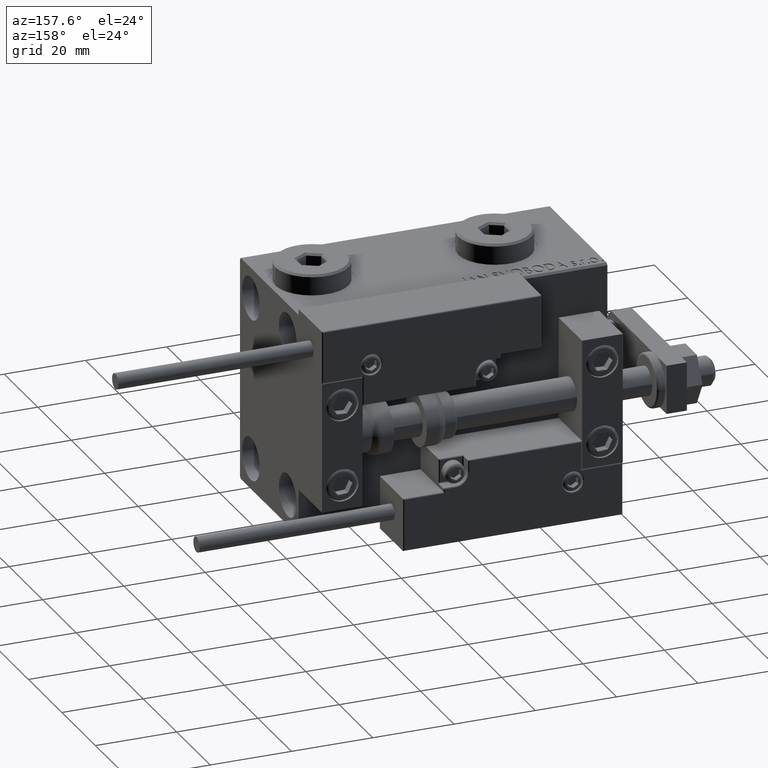
[diagram: clean part render]
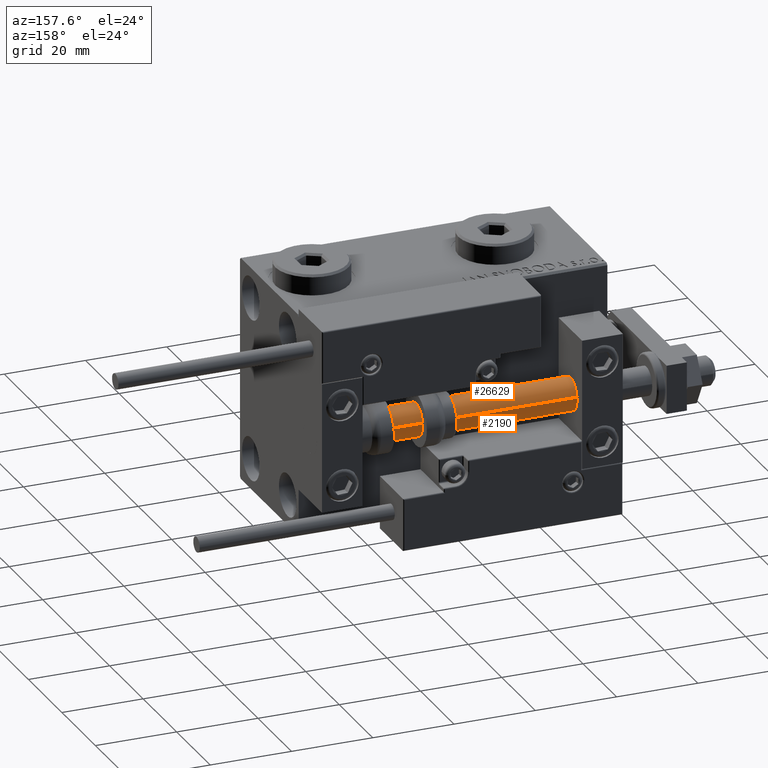
[diagram: same view with one multi-face feature highlighted, each face labeled with its STEP entity id]
A machine part, auxiliary view. The highlighted faces form ONE feature: a constant-radius fillet chain: 2 tangent blend faces with common blend radius 4 mm. The faces share edges in the B-rep.
Their STEP definitions:
[1] entity #26629 (Cylinder):
#31 = EDGE_CURVE ( 'NONE', #38899, #5874, #28288, .T. ) ;
#52 = AXIS2_PLACEMENT_3D ( 'NONE', #51109, #11991, #12262 ) ;
#252 = CARTESIAN_POINT ( 'NONE',  ( 4.000000000000000000, 4.898587196589412829E-16, 2.000000000000029310 ) ) ;
#1293 = LINE ( 'NONE', #13831, #13973 ) ;
#1883 = EDGE_CURVE ( 'NONE', #30315, #32132, #43352, .T. ) ;
#3469 = CARTESIAN_POINT ( 'NONE',  ( -4.000000000000000000, 0.000000000000000000, 76.00000000000000000 ) ) ;
#5874 = VERTEX_POINT ( 'NONE', #3469 ) ;
#5947 = CARTESIAN_POINT ( 'NONE',  ( 0.000000000000000000, 0.000000000000000000, 76.00000000000000000 ) ) ;
#7217 = CARTESIAN_POINT ( 'NONE',  ( -4.000000000000000000, 0.000000000000000000, 2.000000000000029310 ) ) ;
#7664 = LINE ( 'NONE', #44410, #25577 ) ;
#9223 = AXIS2_PLACEMENT_3D ( 'NONE', #5947, #26312, #41924 ) ;
#9635 = DIRECTION ( 'NONE',  ( -0.000000000000000000, -0.000000000000000000, -1.000000000000000000 ) ) ;
#11991 = DIRECTION ( 'NONE',  ( -0.000000000000000000, -0.000000000000000000, 1.000000000000000000 ) ) ;
#12262 = DIRECTION ( 'NONE',  ( 1.000000000000000000, 0.000000000000000000, 0.000000000000000000 ) ) ;
#13831 = CARTESIAN_POINT ( 'NONE',  ( -4.000000000000000000, 0.000000000000000000, 76.00000000000000000 ) ) ;
#13973 = VECTOR ( 'NONE', #9635, 1000.000000000000000 ) ;
#15253 = ORIENTED_EDGE ( 'NONE', *, *, #50145, .F. ) ;
#16639 = AXIS2_PLACEMENT_3D ( 'NONE', #21928, #17760, #29224 ) ;
#17760 = DIRECTION ( 'NONE',  ( 0.000000000000000000, 0.000000000000000000, 1.000000000000000000 ) ) ;
#19450 = EDGE_CURVE ( 'NONE', #38899, #30315, #7664, .T. ) ;
#21928 = CARTESIAN_POINT ( 'NONE',  ( 0.000000000000000000, 0.000000000000000000, 76.00000000000000000 ) ) ;
#25577 = VECTOR ( 'NONE', #47809, 1000.000000000000000 ) ;
#26050 = FACE_OUTER_BOUND ( 'NONE', #44891, .T. ) ;
#26312 = DIRECTION ( 'NONE',  ( -0.000000000000000000, -0.000000000000000000, -1.000000000000000000 ) ) ;
#26629 = ADVANCED_FACE ( 'NONE', ( #26050 ), #42703, .T. ) ;
#28288 = CIRCLE ( 'NONE', #16639, 4.000000000000000000 ) ;
#29224 = DIRECTION ( 'NONE',  ( 1.000000000000000000, 0.000000000000000000, 0.000000000000000000 ) ) ;
#29752 = ORIENTED_EDGE ( 'NONE', *, *, #19450, .T. ) ;
#30315 = VERTEX_POINT ( 'NONE', #252 ) ;
#32132 = VERTEX_POINT ( 'NONE', #7217 ) ;
#35311 = ORIENTED_EDGE ( 'NONE', *, *, #31, .F. ) ;
#38899 = VERTEX_POINT ( 'NONE', #51360 ) ;
#41924 = DIRECTION ( 'NONE',  ( -1.000000000000000000, 0.000000000000000000, 0.000000000000000000 ) ) ;
#42234 = ORIENTED_EDGE ( 'NONE', *, *, #1883, .T. ) ;
#42703 = CYLINDRICAL_SURFACE ( 'NONE', #9223, 4.000000000000000000 ) ;
#43352 = CIRCLE ( 'NONE', #52, 4.000000000000000000 ) ;
#44410 = CARTESIAN_POINT ( 'NONE',  ( 4.000000000000000000, 4.898587196589412829E-16, 76.00000000000000000 ) ) ;
#44891 = EDGE_LOOP ( 'NONE', ( #35311, #29752, #42234, #15253 ) ) ;
#47809 = DIRECTION ( 'NONE',  ( -0.000000000000000000, -0.000000000000000000, -1.000000000000000000 ) ) ;
#50145 = EDGE_CURVE ( 'NONE', #5874, #32132, #1293, .T. ) ;
#51109 = CARTESIAN_POINT ( 'NONE',  ( 0.000000000000000000, 0.000000000000000000, 2.000000000000029310 ) ) ;
#51360 = CARTESIAN_POINT ( 'NONE',  ( 4.000000000000000000, 4.898587196589412829E-16, 76.00000000000000000 ) ) ;
[2] entity #2190 (Cylinder):
#252 = CARTESIAN_POINT ( 'NONE',  ( 4.000000000000000000, 4.898587196589412829E-16, 2.000000000000029310 ) ) ;
#354 = EDGE_CURVE ( 'NONE', #32132, #30315, #49131, .T. ) ;
#1293 = LINE ( 'NONE', #13831, #13973 ) ;
#2190 = ADVANCED_FACE ( 'NONE', ( #7498 ), #19783, .T. ) ;
#2553 = AXIS2_PLACEMENT_3D ( 'NONE', #23428, #3583, #19520 ) ;
#3469 = CARTESIAN_POINT ( 'NONE',  ( -4.000000000000000000, 0.000000000000000000, 76.00000000000000000 ) ) ;
#3508 = CIRCLE ( 'NONE', #4308, 4.000000000000000000 ) ;
#3583 = DIRECTION ( 'NONE',  ( -0.000000000000000000, -0.000000000000000000, -1.000000000000000000 ) ) ;
#4308 = AXIS2_PLACEMENT_3D ( 'NONE', #37766, #21608, #46098 ) ;
#5874 = VERTEX_POINT ( 'NONE', #3469 ) ;
#7217 = CARTESIAN_POINT ( 'NONE',  ( -4.000000000000000000, 0.000000000000000000, 2.000000000000029310 ) ) ;
#7498 = FACE_OUTER_BOUND ( 'NONE', #20468, .T. ) ;
#7664 = LINE ( 'NONE', #44410, #25577 ) ;
#9635 = DIRECTION ( 'NONE',  ( -0.000000000000000000, -0.000000000000000000, -1.000000000000000000 ) ) ;
#13593 = ORIENTED_EDGE ( 'NONE', *, *, #50145, .T. ) ;
#13831 = CARTESIAN_POINT ( 'NONE',  ( -4.000000000000000000, 0.000000000000000000, 76.00000000000000000 ) ) ;
#13973 = VECTOR ( 'NONE', #9635, 1000.000000000000000 ) ;
#17699 = CARTESIAN_POINT ( 'NONE',  ( 0.000000000000000000, 0.000000000000000000, 2.000000000000029310 ) ) ;
#19450 = EDGE_CURVE ( 'NONE', #38899, #30315, #7664, .T. ) ;
#19520 = DIRECTION ( 'NONE',  ( -1.000000000000000000, 0.000000000000000000, 0.000000000000000000 ) ) ;
#19783 = CYLINDRICAL_SURFACE ( 'NONE', #2553, 4.000000000000000000 ) ;
#20468 = EDGE_LOOP ( 'NONE', ( #22951, #21418, #13593, #25615 ) ) ;
#21418 = ORIENTED_EDGE ( 'NONE', *, *, #33618, .F. ) ;
#21608 = DIRECTION ( 'NONE',  ( 0.000000000000000000, 0.000000000000000000, 1.000000000000000000 ) ) ;
#22951 = ORIENTED_EDGE ( 'NONE', *, *, #19450, .F. ) ;
#23428 = CARTESIAN_POINT ( 'NONE',  ( 0.000000000000000000, 0.000000000000000000, 76.00000000000000000 ) ) ;
#25577 = VECTOR ( 'NONE', #47809, 1000.000000000000000 ) ;
#25615 = ORIENTED_EDGE ( 'NONE', *, *, #354, .T. ) ;
#30315 = VERTEX_POINT ( 'NONE', #252 ) ;
#32132 = VERTEX_POINT ( 'NONE', #7217 ) ;
#33590 = DIRECTION ( 'NONE',  ( -0.000000000000000000, -0.000000000000000000, 1.000000000000000000 ) ) ;
#33618 = EDGE_CURVE ( 'NONE', #5874, #38899, #3508, .T. ) ;
#37766 = CARTESIAN_POINT ( 'NONE',  ( 0.000000000000000000, 0.000000000000000000, 76.00000000000000000 ) ) ;
#38334 = AXIS2_PLACEMENT_3D ( 'NONE', #17699, #33590, #40623 ) ;
#38899 = VERTEX_POINT ( 'NONE', #51360 ) ;
#40623 = DIRECTION ( 'NONE',  ( 1.000000000000000000, 0.000000000000000000, 0.000000000000000000 ) ) ;
#44410 = CARTESIAN_POINT ( 'NONE',  ( 4.000000000000000000, 4.898587196589412829E-16, 76.00000000000000000 ) ) ;
#46098 = DIRECTION ( 'NONE',  ( 1.000000000000000000, 0.000000000000000000, 0.000000000000000000 ) ) ;
#47809 = DIRECTION ( 'NONE',  ( -0.000000000000000000, -0.000000000000000000, -1.000000000000000000 ) ) ;
#49131 = CIRCLE ( 'NONE', #38334, 4.000000000000000000 ) ;
#50145 = EDGE_CURVE ( 'NONE', #5874, #32132, #1293, .T. ) ;
#51360 = CARTESIAN_POINT ( 'NONE',  ( 4.000000000000000000, 4.898587196589412829E-16, 76.00000000000000000 ) ) ;